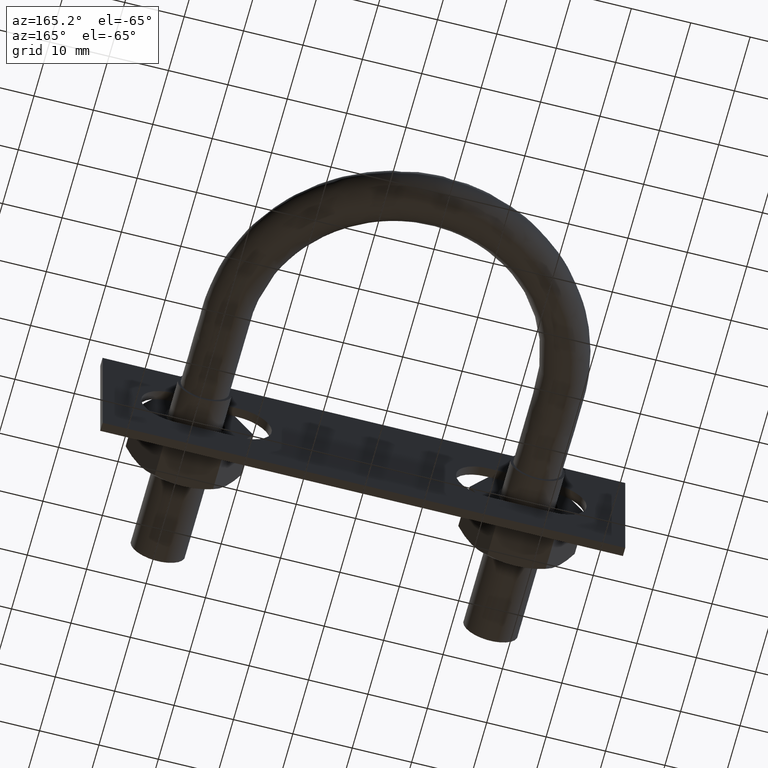
[diagram: clean part render]
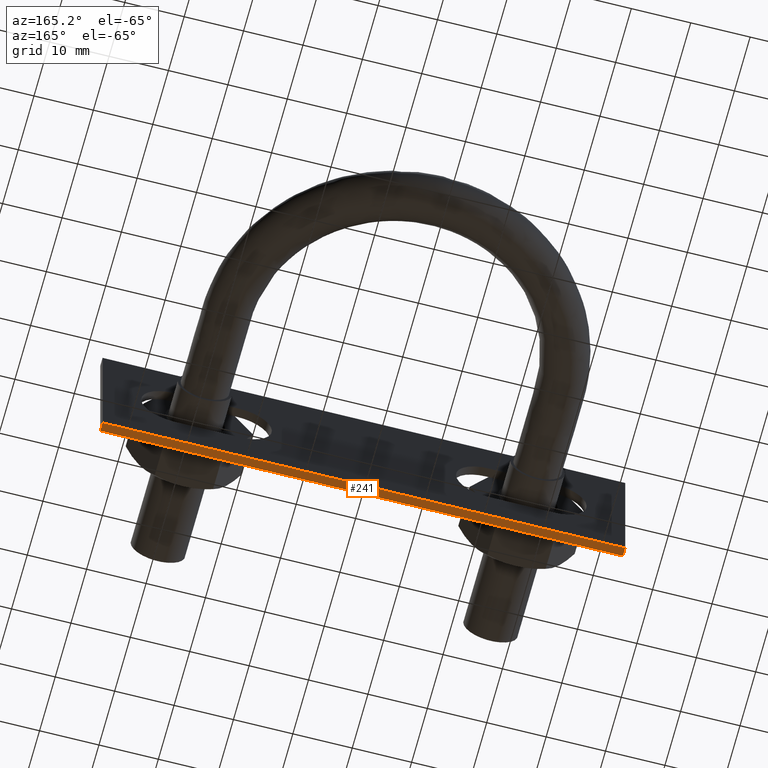
[diagram: same view with one face highlighted and labeled with its STEP entity id]
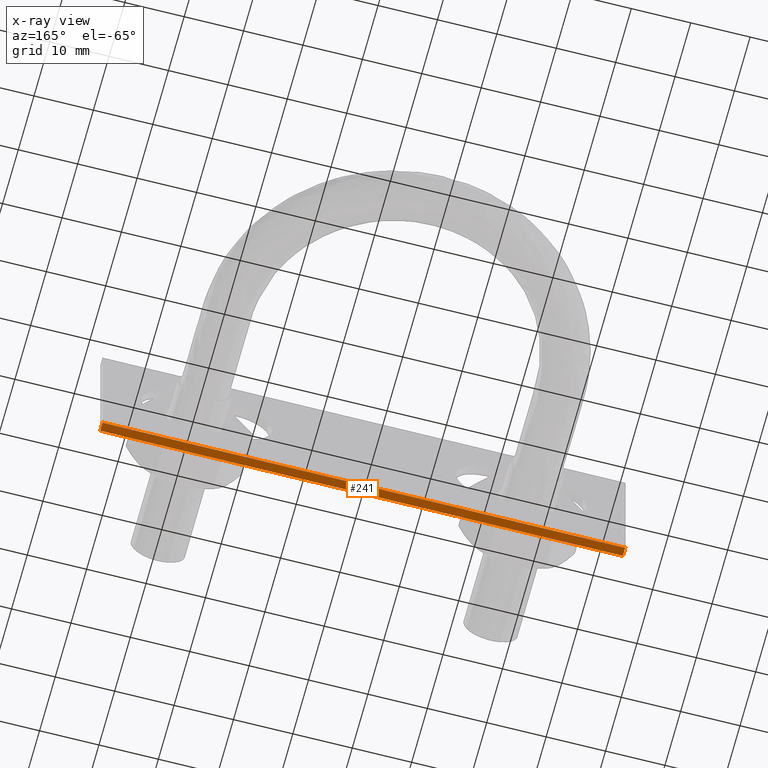
[diagram: x-ray of the same camera — body ghosted, the highlighted face saturated]
A machine part, auxiliary view. The second image highlights one B-rep face of the part: STEP entity #241.
The next image is the same camera in x-ray: the body ghosted, the highlighted face saturated — about 0% of this face is hidden behind the body in this view.
In plain terms, the highlighted planar face has unit normal (0, 0, 1).
Its self-contained STEP definition (entity closure, byte-faithful):
#241 = ADVANCED_FACE( '', ( #344 ), #345, .F. );
#344 = FACE_OUTER_BOUND( '', #654, .T. );
#345 = PLANE( '', #655 );
#654 = EDGE_LOOP( '', ( #921, #922, #923, #924 ) );
#655 = AXIS2_PLACEMENT_3D( '', #925, #926, #927 );
#921 = ORIENTED_EDGE( '', *, *, #1333, .T. );
#922 = ORIENTED_EDGE( '', *, *, #1340, .F. );
#923 = ORIENTED_EDGE( '', *, *, #1301, .F. );
#924 = ORIENTED_EDGE( '', *, *, #1311, .T. );
#925 = CARTESIAN_POINT( '', ( -44.0000000000000, -6.20000000000000, -12.5000000000000 ) );
#926 = DIRECTION( '', ( 0.000000000000000, 6.12303176911189E-017, 1.00000000000000 ) );
#927 = DIRECTION( '', ( -1.00000000000000, 0.000000000000000, 0.000000000000000 ) );
#1301 = EDGE_CURVE( '', #1471, #1473, #1474, .T. );
#1311 = EDGE_CURVE( '', #1471, #1491, #1493, .T. );
#1333 = EDGE_CURVE( '', #1491, #1527, #1529, .T. );
#1340 = EDGE_CURVE( '', #1473, #1527, #1536, .T. );
#1471 = VERTEX_POINT( '', #1755 );
#1473 = VERTEX_POINT( '', #1758 );
#1474 = LINE( '', #1759, #1760 );
#1491 = VERTEX_POINT( '', #1781 );
#1493 = LINE( '', #1784, #1785 );
#1527 = VERTEX_POINT( '', #1831 );
#1529 = LINE( '', #1834, #1835 );
#1536 = LINE( '', #1848, #1849 );
#1755 = CARTESIAN_POINT( '', ( -44.0000000000000, -6.20000000000000, -12.5000000000000 ) );
#1758 = CARTESIAN_POINT( '', ( 44.0000000000000, -6.20000000000000, -12.5000000000000 ) );
#1759 = CARTESIAN_POINT( '', ( -44.0000000000000, -6.20000000000000, -12.5000000000000 ) );
#1760 = VECTOR( '', #2223, 1000.00000000000 );
#1781 = CARTESIAN_POINT( '', ( -44.0000000000000, -4.70000000000000, -12.5000000000000 ) );
#1784 = CARTESIAN_POINT( '', ( -44.0000000000000, -6.20000000000000, -12.5000000000000 ) );
#1785 = VECTOR( '', #2241, 1000.00000000000 );
#1831 = CARTESIAN_POINT( '', ( 44.0000000000000, -4.70000000000000, -12.5000000000000 ) );
#1834 = CARTESIAN_POINT( '', ( -44.0000000000000, -4.70000000000000, -12.5000000000000 ) );
#1835 = VECTOR( '', #2279, 1000.00000000000 );
#1848 = CARTESIAN_POINT( '', ( 44.0000000000000, -6.20000000000000, -12.5000000000000 ) );
#1849 = VECTOR( '', #2286, 1000.00000000000 );
#2223 = DIRECTION( '', ( 1.00000000000000, 0.000000000000000, 0.000000000000000 ) );
#2241 = DIRECTION( '', ( 0.000000000000000, 1.00000000000000, -6.12303176911189E-017 ) );
#2279 = DIRECTION( '', ( 1.00000000000000, 0.000000000000000, 0.000000000000000 ) );
#2286 = DIRECTION( '', ( 0.000000000000000, 1.00000000000000, -6.12303176911189E-017 ) );